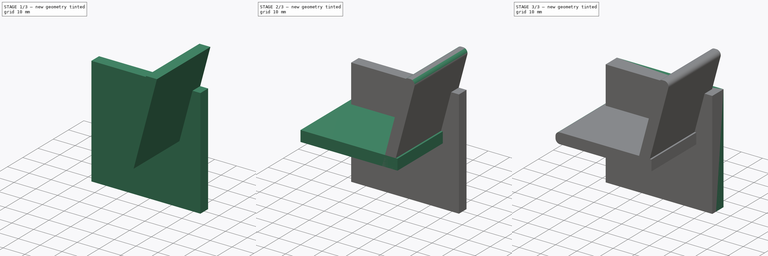
[diagram: build sequence overview — one tinted view per stage of 3, left to right]
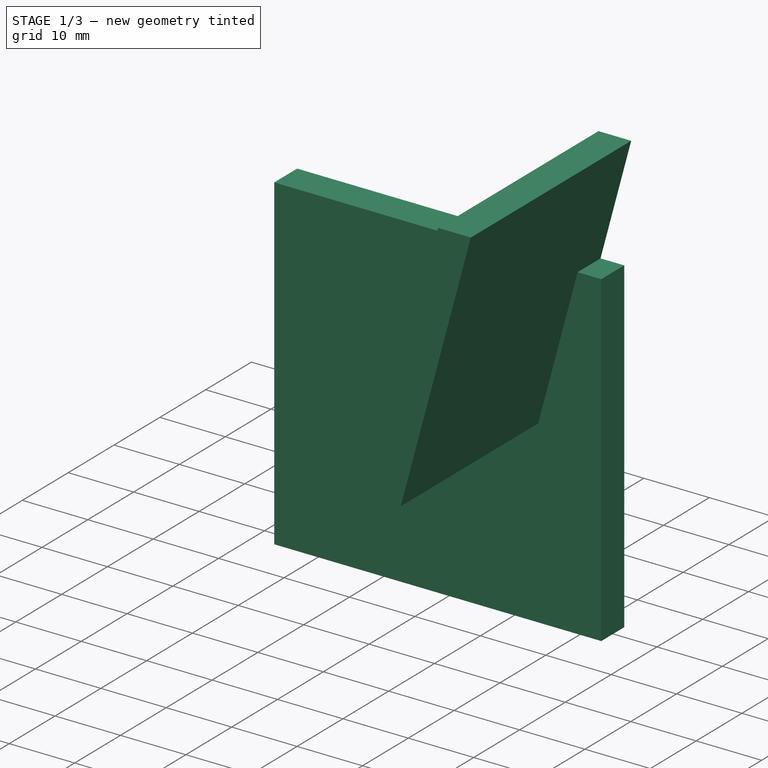
[diagram: stage 1 of 3 — iso view after this stage's code; geometry added in this stage tinted green]
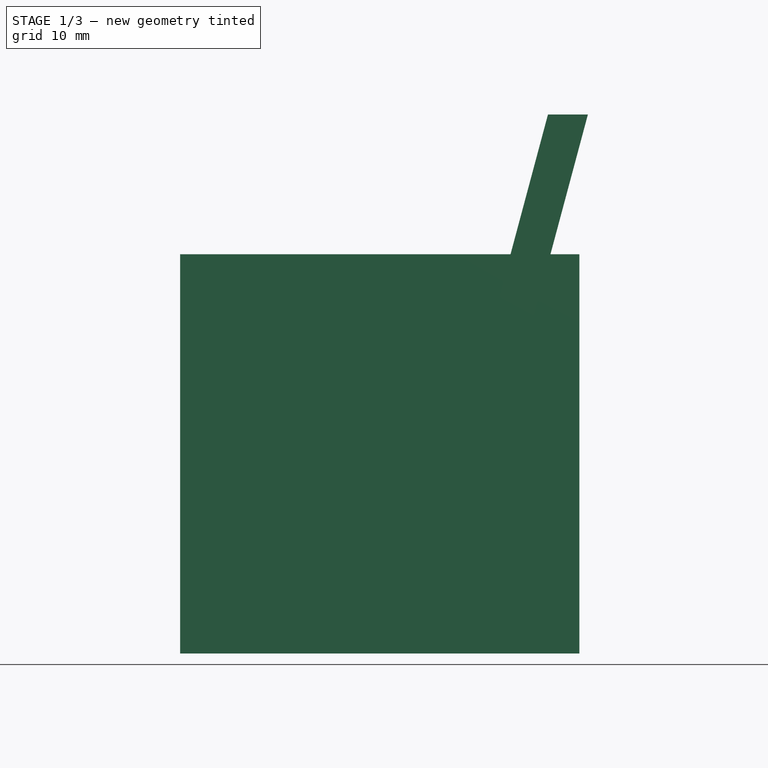
[diagram: stage 1 of 3 — front view after this stage's code; geometry added in this stage tinted green]
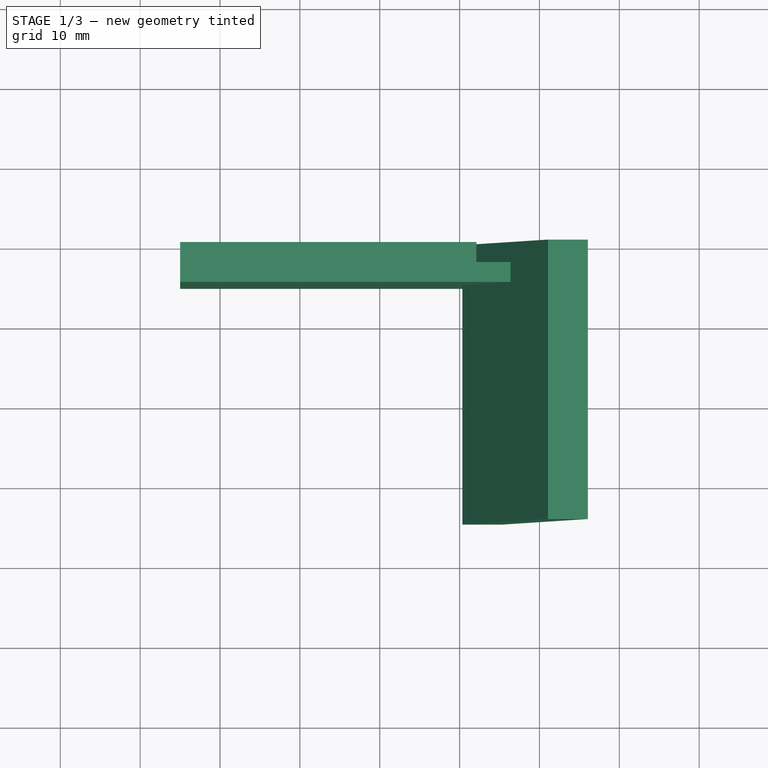
[diagram: stage 1 of 3 — top view after this stage's code; geometry added in this stage tinted green]
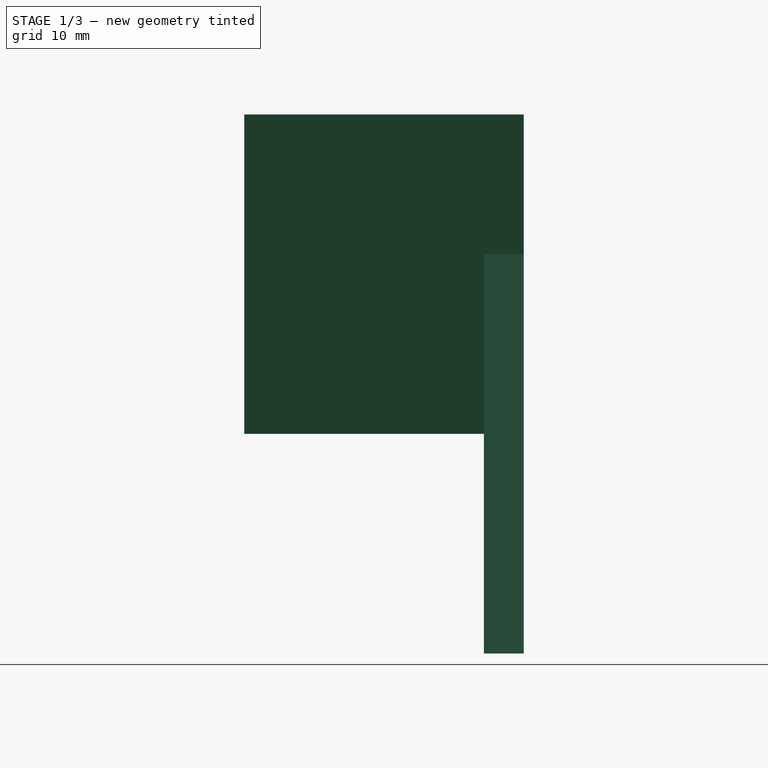
[diagram: stage 1 of 3 — right view after this stage's code; geometry added in this stage tinted green]
FCSTD DOCUMENT  (FreeCAD 1.0R39109 (Git))
Label: chair
License: All rights reserved
LicenseURL: https://en.wikipedia.org/wiki/All_rights_reserved
objects: Sketcher::SketchObject×6, PartDesign::Pad×4, PartDesign::Body×4, PartDesign::Pocket×2, PartDesign::Fillet×2, App::VarSet×1
note: 40 computed .brp shape members not serialized (recipe doc carries the construction recipe); baked Part::Feature solids carry a one-line shape summary decoded from their .brp

FEATURE [PartDesign::Body] Body001  label="seat"
  AllowCompound = false
  Group = -> [Sketch002,Pad001,Fillet]
  Origin = -> Origin001
  Tip = -> Fillet
FEATURE [Sketcher::SketchObject] Sketch003
  ArcFitTolerance = 1e-06
  AttachmentSupport = -> [XZ_Plane002]
  FullyConstrained = false
  MakeInternals = false
  MapMode = 5
  Placement = pos=(0,0,0) rot=(1,0,0;1.5708rad)
  expr: Constraints[10] = VarSet.seat_thickness / 2
  expr: Constraints[4] = VarSet.back_rest_thickness
  expr: Constraints[5] = 105
  expr: Constraints[9] = VarSet.back_rest_height
  sketch-geometry (4):
    g0: LineSegment StartX=21.0671 StartY=42.5 StartZ=0 EndX=10.3491 EndY=2.5 EndZ=0
    g1: LineSegment StartX=10.3491 StartY=2.5 StartZ=0 EndX=15.3491 EndY=2.5 EndZ=0
    g2: LineSegment StartX=15.3491 StartY=2.5 StartZ=0 EndX=26.0671 EndY=42.5 EndZ=0
    g3: LineSegment StartX=26.0671 StartY=42.5 StartZ=0 EndX=21.0671 EndY=42.5 EndZ=0
  constraints (11):
    c: Coincident(g0,g1)
    c: Coincident(g1,g2)
    c: Coincident(g2,g3)
    c: Coincident(g3,g0)
    c: Distance(g3,g3) = 5
    c: Angle(g2,g1) = 1.8326
    c: Horizontal(g1)
    c: Parallel(g2,g0)
    c: Horizontal(g3)
    c: DistanceY(g2,g2) = 40
    c: Distance(g1,g-1) = 2.5
FEATURE [PartDesign::Pad] Pad002
  Direction = (0,-1,2e-16)
  Length = 35
  Length2 = 10
  Placement = pos=(0,0,0) rot=(1,0,0;1.5708rad)
  Profile = -> Sketch003
  ReferenceAxis = -> Sketch003 [N_Axis]
  Refine = true
  Suppressed = false
  Type = 0
  expr: Length = VarSet.seat_width
FEATURE [PartDesign::Body] Body002  label="back_rest"
  AllowCompound = false
  Group = -> [Sketch003,Pad002,Fillet001]
  Origin = -> Origin002
  Tip = -> Fillet001
FEATURE [Sketcher::SketchObject] Sketch004
  ArcFitTolerance = 1e-06
  AttachmentSupport = -> [XZ_Plane]
  FullyConstrained = true
  MakeInternals = false
  MapMode = 5
  Placement = pos=(0,0,0) rot=(1,0,0;1.5708rad)
  expr: Constraints[10] = VarSet.leg_depth
  expr: Constraints[11] = VarSet.leg_height
  sketch-geometry (5):
    g0: LineSegment StartX=-25 StartY=-25 StartZ=0 EndX=25 EndY=-25 EndZ=0
    g1: LineSegment StartX=25 StartY=-25 StartZ=0 EndX=25 EndY=25 EndZ=0
    g2: LineSegment StartX=25 StartY=25 StartZ=0 EndX=-25 EndY=25 EndZ=0
    g3: LineSegment StartX=-25 StartY=25 StartZ=0 EndX=-25 EndY=-25 EndZ=0
    g4: GeomPoint [constr] X=0 Y=0 Z=0
  constraints (12):
    c: Coincident(g0,g1)
    c: Coincident(g1,g2)
    c: Coincident(g2,g3)
    c: Coincident(g3,g0)
    c: Horizontal(g0)
    c: Horizontal(g2)
    c: Vertical(g1)
    c: Vertical(g3)
    c: Symmetric(g2,g0,g4)
    c: Coincident(g4,g-1)
    c: DistanceX(g2,g2) = 50
    c: DistanceY(g3,g3) = 50
FEATURE [PartDesign::Pad] Pad003
  Direction = (0,-1,2e-16)
  Length = 5
  Length2 = 10
  Placement = pos=(0,0,0) rot=(1,0,0;1.5708rad)
  Profile = -> Sketch004
  ReferenceAxis = -> Sketch004 [N_Axis]
  Refine = true
  Suppressed = false
  Type = 0
  expr: Length = VarSet.leg_thickness
FEATURE [Sketcher::SketchObject] Sketch005
  ArcFitTolerance = 1e-06
  AttachmentSupport = -> [Pad003]
  ExternalGeometry = -> [Pad003]
  FullyConstrained = true
  MakeInternals = false
  MapMode = 5
  Placement = pos=(0,0,0) rot=(-1,0,0;1.5708rad)
  expr: Constraints[16] = VarSet.seat_depth
  expr: Constraints[17] = VarSet.back_rest_thickness
  expr: Constraints[21] = VarSet.seat_rest_start
  expr: Constraints[22] = VarSet.leg_seat_height
  expr: Constraints[23] = VarSet.seat_thickness
  sketch-geometry (8):
    g0: LineSegment StartX=-25 StartY=-12.5 StartZ=0 EndX=-25 EndY=-7.5 EndZ=0
    g1: LineSegment StartX=-25 StartY=-7.5 StartZ=0 EndX=20 EndY=-7.5 EndZ=0
    g2: LineSegment StartX=20 StartY=-7.5 StartZ=0 EndX=20 EndY=-12.5 EndZ=0
    g3: LineSegment StartX=20 StartY=-12.5 StartZ=0 EndX=13.75 EndY=-12.5 EndZ=0
    g4: LineSegment StartX=13.75 StartY=-12.5 StartZ=0 EndX=17.0994 EndY=-25 EndZ=0
    g5: LineSegment StartX=17.0994 StartY=-25 StartZ=0 EndX=12.0994 EndY=-25 EndZ=0
    g6: LineSegment StartX=12.0994 StartY=-25 StartZ=0 EndX=8.75 EndY=-12.5 EndZ=0
    g7: LineSegment StartX=8.75 StartY=-12.5 StartZ=0 EndX=-25 EndY=-12.5 EndZ=0
  constraints (24):
    c: PointOnObject(g0,g-5)
    c: PointOnObject(g0,g-5)
    c: Coincident(g0,g1)
    c: Horizontal(g1)
    c: Coincident(g1,g2)
    c: Vertical(g2)
    c: Coincident(g2,g3)
    c: Horizontal(g3)
    c: Coincident(g3,g4)
    c: PointOnObject(g4,g-3)
    c: Coincident(g4,g5)
    c: PointOnObject(g5,g-3)
    c: Coincident(g5,g6)
    c: Coincident(g6,g7)
    c: Coincident(g7,g0)
    c: Horizontal(g7)
    c: DistanceX(g1,g1) = 45
    c: Distance(g5,g5) = 5
    c: Angle(g7,g6) = 1.8326
    c: Equal(g2,g0)
    c: Parallel(g6,g4)
    c: DistanceX(g7,g7) = 33.75
    c: Distance(g1,g-6) = 32.5
    c: Distance(g0,g0) = 5
FEATURE [PartDesign::Pocket] Pocket001
  BaseFeature = -> Pad003
  Direction = (0,-1,-2e-16)
  Length = 2.5
  Length2 = 5
  Placement = pos=(0,0,0) rot=(1,0,0;1.5708rad)
  Profile = -> Sketch005
  ReferenceAxis = -> Sketch005 [N_Axis]
  Refine = true
  Suppressed = false
  Type = 0
  expr: Length = VarSet.leg_clamp_depth
FEATURE [PartDesign::Body] Body003  label="left_leg"
  AllowCompound = false
  Group = -> [Sketch004,Pad003,Sketch005,Pocket001]
  Origin = -> Origin003
  Tip = -> Pocket001
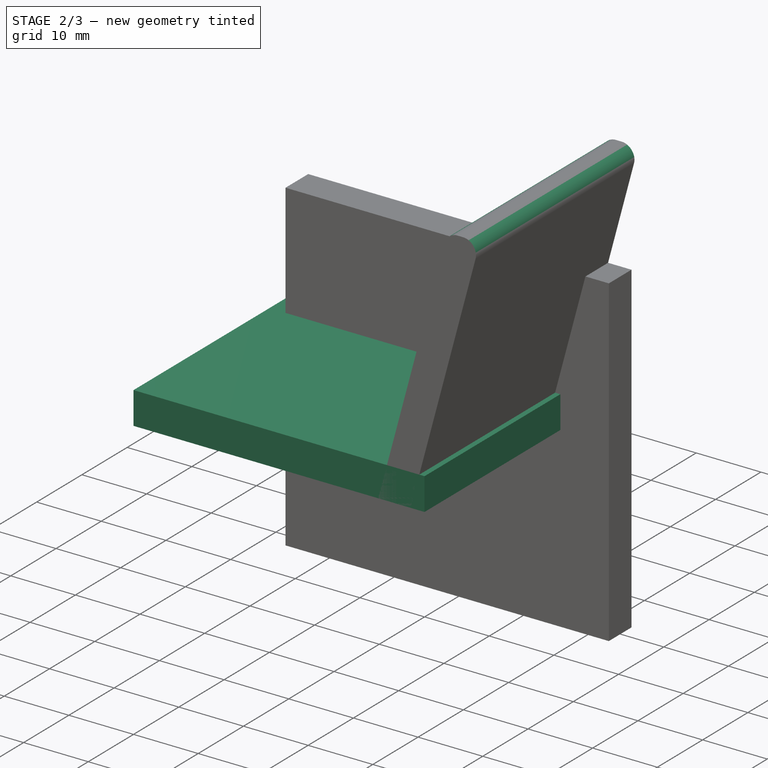
[diagram: stage 2 of 3 — iso view after this stage's code; geometry added in this stage tinted green]
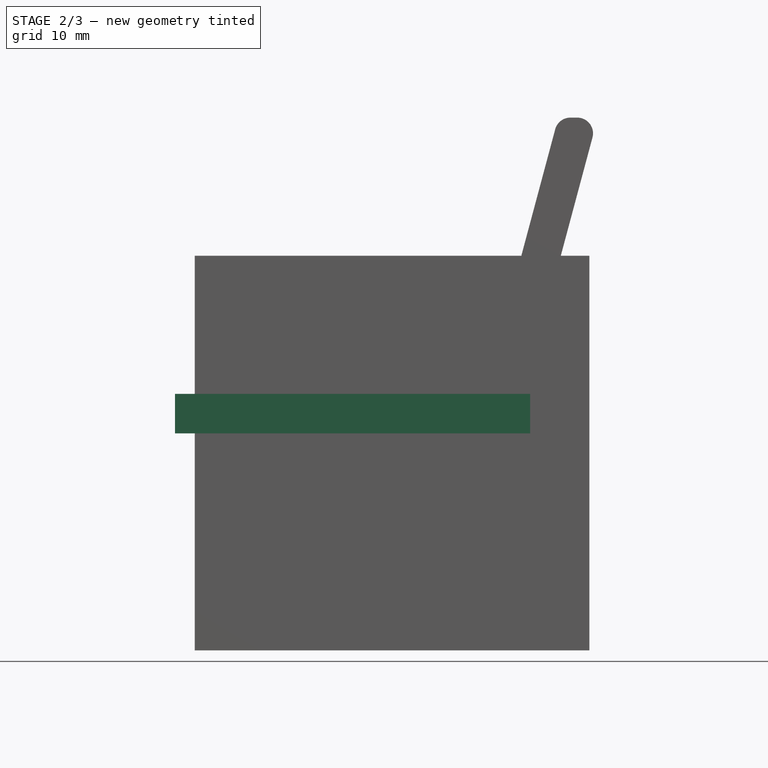
[diagram: stage 2 of 3 — front view after this stage's code; geometry added in this stage tinted green]
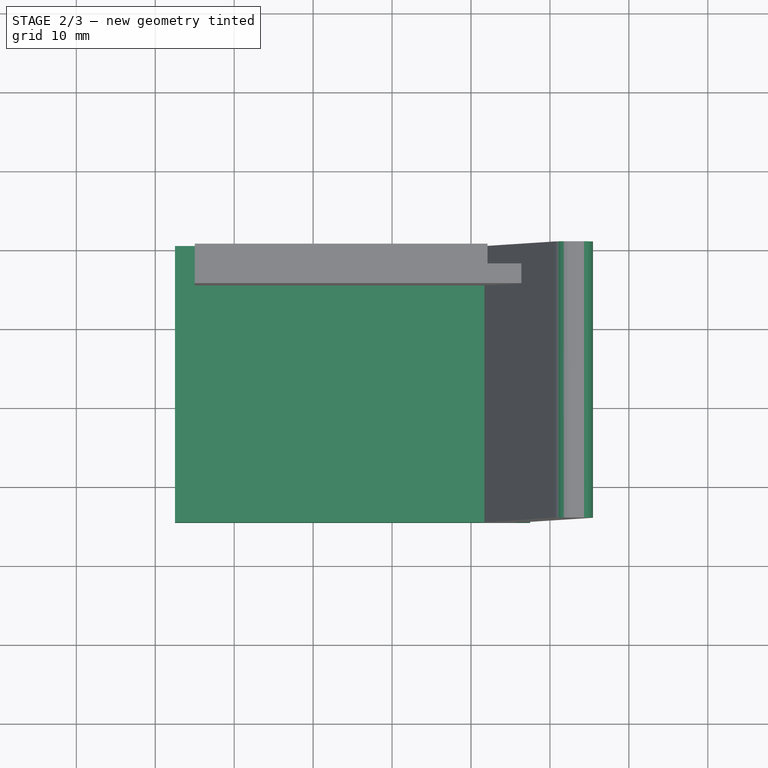
[diagram: stage 2 of 3 — top view after this stage's code; geometry added in this stage tinted green]
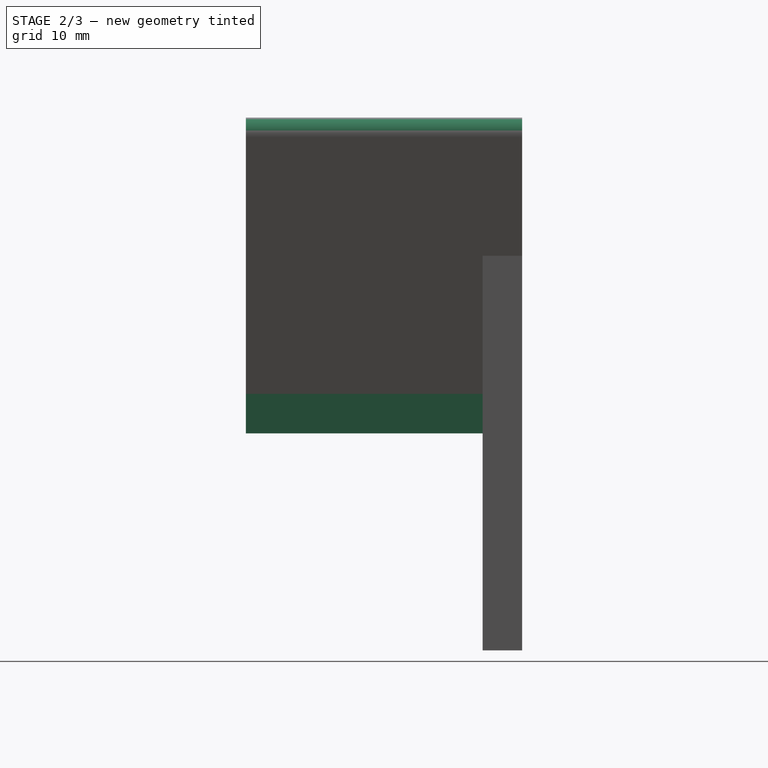
[diagram: stage 2 of 3 — right view after this stage's code; geometry added in this stage tinted green]
FEATURE [PartDesign::Body] Body  label="right_leg"
  AllowCompound = false
  Group = -> [Sketch,Pad,Sketch001,Pocket]
  Origin = -> Origin
  Tip = -> Pocket
FEATURE [Sketcher::SketchObject] Sketch002
  ArcFitTolerance = 1e-06
  AttachmentSupport = -> [XZ_Plane001]
  FullyConstrained = true
  MakeInternals = false
  MapMode = 5
  Placement = pos=(0,0,0) rot=(1,0,0;1.5708rad)
  expr: Constraints[11] = VarSet.leg_height / 2 - (VarSet.leg_height - VarSet.leg_seat_height + VarSet.seat_thickness)
  expr: Constraints[7] = VarSet.seat_depth
  expr: Constraints[8] = VarSet.seat_thickness
  expr: Constraints[9] = VarSet.seat_depth / 2 + VarSet.leg_depth - VarSet.seat_depth
  sketch-geometry (4):
    g0: LineSegment StartX=17.5 StartY=2.5 StartZ=0 EndX=17.5 EndY=7.5 EndZ=0
    g1: LineSegment StartX=17.5 StartY=7.5 StartZ=0 EndX=-27.5 EndY=7.5 EndZ=0
    g2: LineSegment StartX=-27.5 StartY=7.5 StartZ=0 EndX=-27.5 EndY=2.5 EndZ=0
    g3: LineSegment StartX=-27.5 StartY=2.5 StartZ=0 EndX=17.5 EndY=2.5 EndZ=0
  constraints (12):
    c: Coincident(g0,g1)
    c: Coincident(g1,g2)
    c: Coincident(g2,g3)
    c: Coincident(g3,g0)
    c: Vertical(g0)
    c: Horizontal(g1)
    c: Horizontal(g3)
    c: DistanceX(g1,g1) = 45
    c: Distance(g0,g0) = 5
    c: Distance(g2,g-2) = 27.5
    c: Equal(g2,g0)
    c: Distance(g2,g-1) = 2.5
FEATURE [PartDesign::Pad] Pad001
  Direction = (0,-1,2e-16)
  Length = 35
  Length2 = 10
  Placement = pos=(0,0,0) rot=(1,0,0;1.5708rad)
  Profile = -> Sketch002
  ReferenceAxis = -> Sketch002 [N_Axis]
  Refine = true
  Suppressed = false
  Type = 0
  expr: Length = VarSet.seat_width
FEATURE [PartDesign::Fillet] Fillet001
  Base = -> Pad002 [Edge1,Edge8]
  BaseFeature = -> Pad002
  Placement = pos=(0,0,0) rot=(1,0,0;1.5708rad)
  Radius = 2
  Refine = true
  SupportTransform = false
  Suppressed = false
  UseAllEdges = false
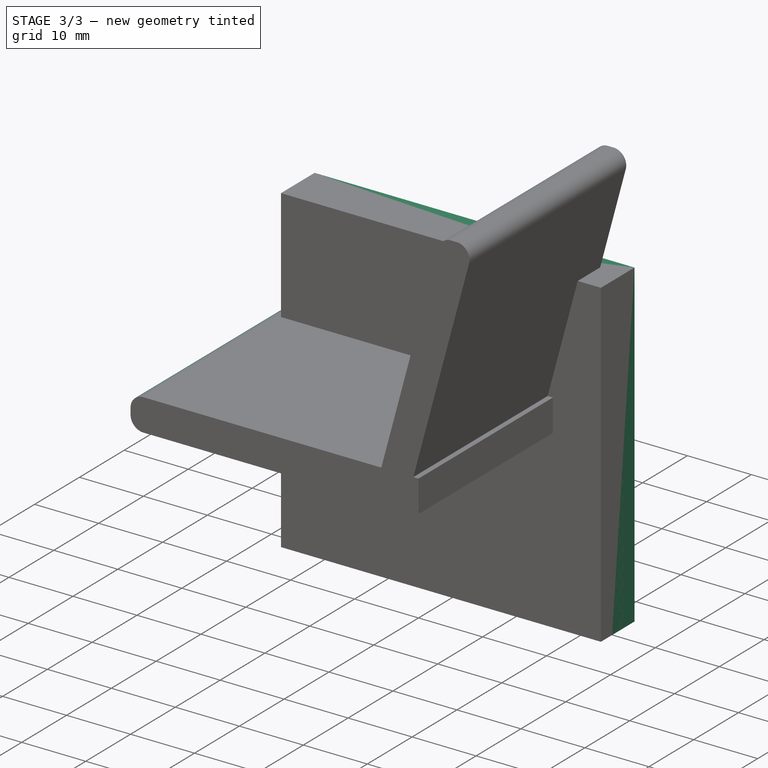
[diagram: stage 3 of 3 — iso view after this stage's code; geometry added in this stage tinted green]
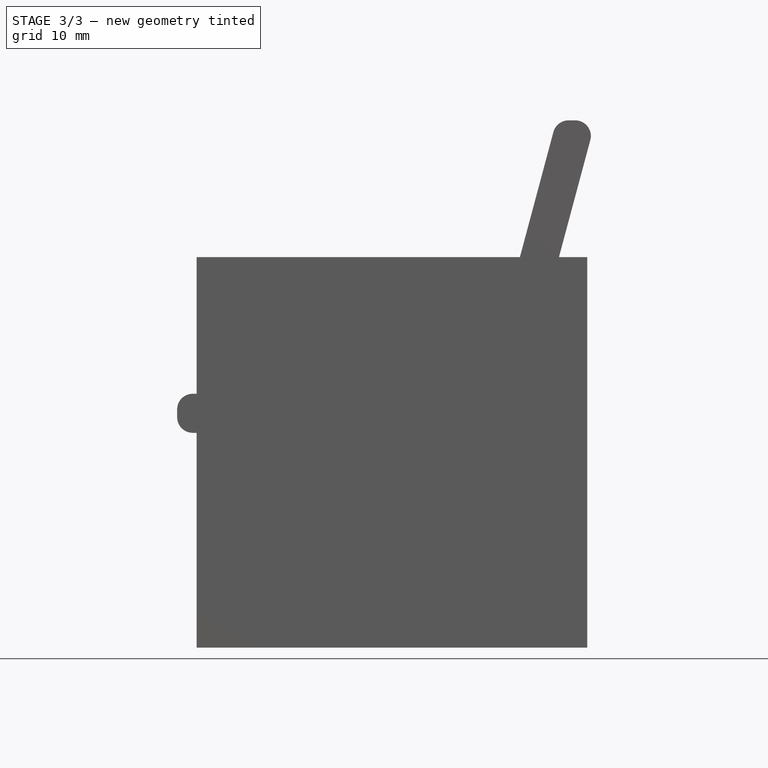
[diagram: stage 3 of 3 — front view after this stage's code; geometry added in this stage tinted green]
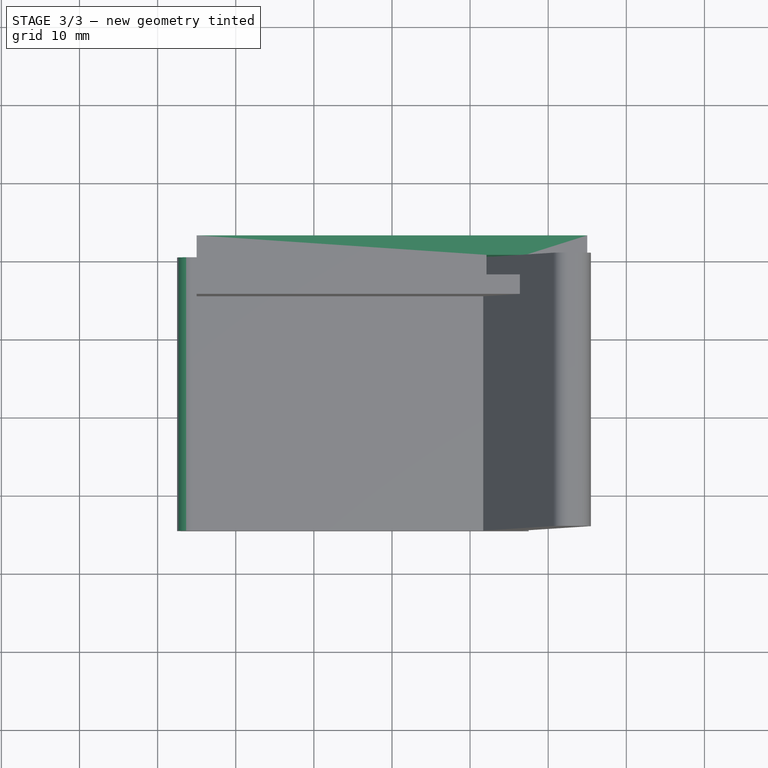
[diagram: stage 3 of 3 — top view after this stage's code; geometry added in this stage tinted green]
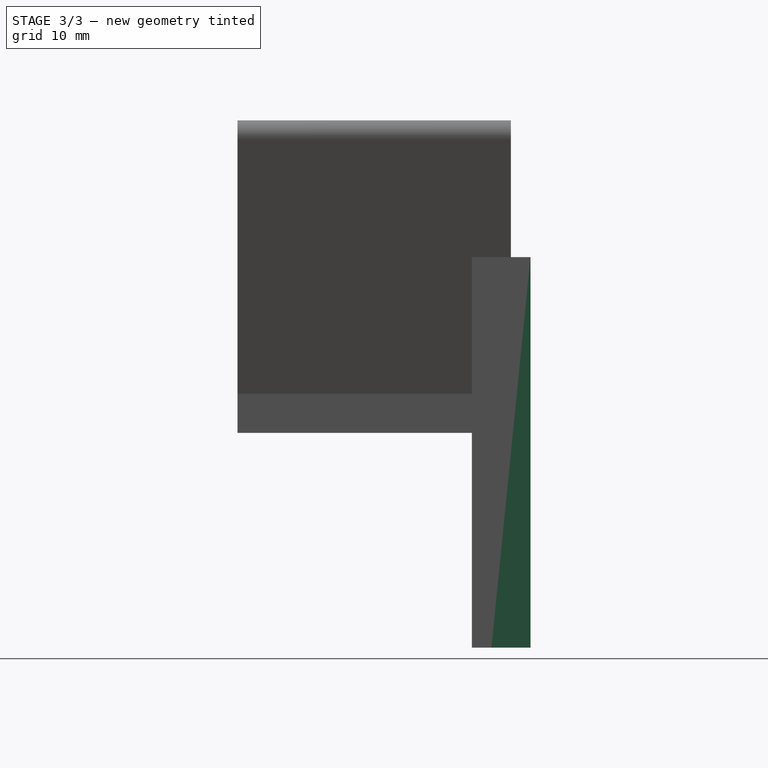
[diagram: stage 3 of 3 — right view after this stage's code; geometry added in this stage tinted green]
FEATURE [App::VarSet] VarSet
  back_rest_height = 40
  back_rest_thickness = 5
  leg_clamp_depth = 2.5
  leg_depth = 50
  leg_height = 50
  leg_seat_height = 32.5
  leg_thickness = 5
  seat_depth = 45
  seat_rest_start = 33.75
  seat_thickness = 5
  seat_width = 35
  expr: leg_clamp_depth = leg_thickness * 0.5
  expr: leg_seat_height = leg_height * 0.65
  expr: seat_depth = leg_depth - leg_depth * 0.1
  expr: seat_rest_start = seat_depth * 0.75
FEATURE [Sketcher::SketchObject] Sketch
  ArcFitTolerance = 1e-06
  AttachmentSupport = -> [XZ_Plane]
  FullyConstrained = true
  MakeInternals = false
  MapMode = 5
  Placement = pos=(0,0,0) rot=(1,0,0;1.5708rad)
  expr: Constraints[10] = VarSet.leg_depth
  expr: Constraints[11] = VarSet.leg_height
  sketch-geometry (5):
    g0: LineSegment StartX=-25 StartY=-25 StartZ=0 EndX=25 EndY=-25 EndZ=0
    g1: LineSegment StartX=25 StartY=-25 StartZ=0 EndX=25 EndY=25 EndZ=0
    g2: LineSegment StartX=25 StartY=25 StartZ=0 EndX=-25 EndY=25 EndZ=0
    g3: LineSegment StartX=-25 StartY=25 StartZ=0 EndX=-25 EndY=-25 EndZ=0
    g4: GeomPoint [constr] X=0 Y=1e-16 Z=0
  constraints (12):
    c: Coincident(g0,g1)
    c: Coincident(g1,g2)
    c: Coincident(g2,g3)
    c: Coincident(g3,g0)
    c: Horizontal(g0)
    c: Horizontal(g2)
    c: Vertical(g1)
    c: Vertical(g3)
    c: Symmetric(g2,g0,g4)
    c: Coincident(g4,g-1)
    c: DistanceX(g2,g2) = 50
    c: DistanceY(g3,g3) = 50
FEATURE [PartDesign::Pad] Pad  label="leg"
  Direction = (0,-1,2e-16)
  Length = 5
  Length2 = 10
  Midplane = true
  Placement = pos=(0,0,0) rot=(1,0,0;1.5708rad)
  Profile = -> Sketch
  ReferenceAxis = -> Sketch [N_Axis]
  Refine = true
  Suppressed = false
  Type = 0
  expr: Length = VarSet.leg_thickness
FEATURE [Sketcher::SketchObject] Sketch001
  ArcFitTolerance = 1e-06
  AttachmentSupport = -> [Pad]
  ExternalGeometry = -> [Pad]
  FullyConstrained = true
  MakeInternals = false
  MapMode = 5
  Placement = pos=(0,-2.5,0) rot=(1,0,0;1.5708rad)
  expr: Constraints[16] = VarSet.seat_rest_start
  expr: Constraints[22] = VarSet.seat_thickness
  expr: Constraints[23] = VarSet.leg_seat_height
  expr: Constraints[8] = VarSet.back_rest_thickness
  expr: Constraints[9] = VarSet.seat_depth
  sketch-geometry (8):
    g0: LineSegment StartX=-25 StartY=7.5 StartZ=0 EndX=-25 EndY=12.5 EndZ=0
    g1: LineSegment StartX=-25 StartY=7.5 StartZ=0 EndX=20 EndY=7.5 EndZ=0
    g2: LineSegment StartX=20 StartY=12.5 StartZ=0 EndX=20 EndY=7.5 EndZ=0
    g3: LineSegment StartX=20 StartY=12.5 StartZ=0 EndX=13.75 EndY=12.5 EndZ=0
    g4: LineSegment StartX=13.75 StartY=12.5 StartZ=0 EndX=17.0994 EndY=25 EndZ=0
    g5: LineSegment StartX=17.0994 StartY=25 StartZ=0 EndX=12.0994 EndY=25 EndZ=0
    g6: LineSegment StartX=12.0994 StartY=25 StartZ=0 EndX=8.75 EndY=12.5 EndZ=0
    g7: LineSegment StartX=8.75 StartY=12.5 StartZ=0 EndX=-25 EndY=12.5 EndZ=0
  constraints (24):
    c: Horizontal(g1)
    c: Horizontal(g3)
    c: Coincident(g3,g4)
    c: PointOnObject(g4,g-3)
    c: Coincident(g4,g5)
    c: PointOnObject(g5,g-3)
    c: Coincident(g5,g6)
    c: Coincident(g6,g7)
    c: Distance(g5,g5) = 5
    c: DistanceX(g1,g1) = 45
    c: Equal(g2,g0)
    c: Horizontal(g7)
    c: PointOnObject(g0,g-6)
    c: Vertical(g2)
    c: Parallel(g6,g4)
    c: Angle(g6,g7) = 1.8326
    c: DistanceX(g7,g7) = 33.75
    c: Vertical(g0)
    c: Coincident(g2,g1)
    c: Coincident(g2,g3)
    c: Coincident(g7,g0)
    c: Coincident(g0,g1)
    c: Distance(g0,g0) = 5
    c: Distance(g0,g-5) = 32.5
FEATURE [PartDesign::Pocket] Pocket  label="seat_n_rest_pocket"
  BaseFeature = -> Pad
  Direction = (0,1,-2e-16)
  Length = 2.5
  Length2 = 5
  Placement = pos=(0,0,0) rot=(1,0,0;1.5708rad)
  Profile = -> Sketch001
  ReferenceAxis = -> Sketch001 [N_Axis]
  Refine = true
  Suppressed = false
  Type = 0
  expr: Length = VarSet.leg_clamp_depth
FEATURE [PartDesign::Fillet] Fillet
  Base = -> Pad001 [Edge5,Edge8]
  BaseFeature = -> Pad001
  Placement = pos=(0,0,0) rot=(1,0,0;1.5708rad)
  Radius = 2
  Refine = true
  SupportTransform = false
  Suppressed = false
  UseAllEdges = false
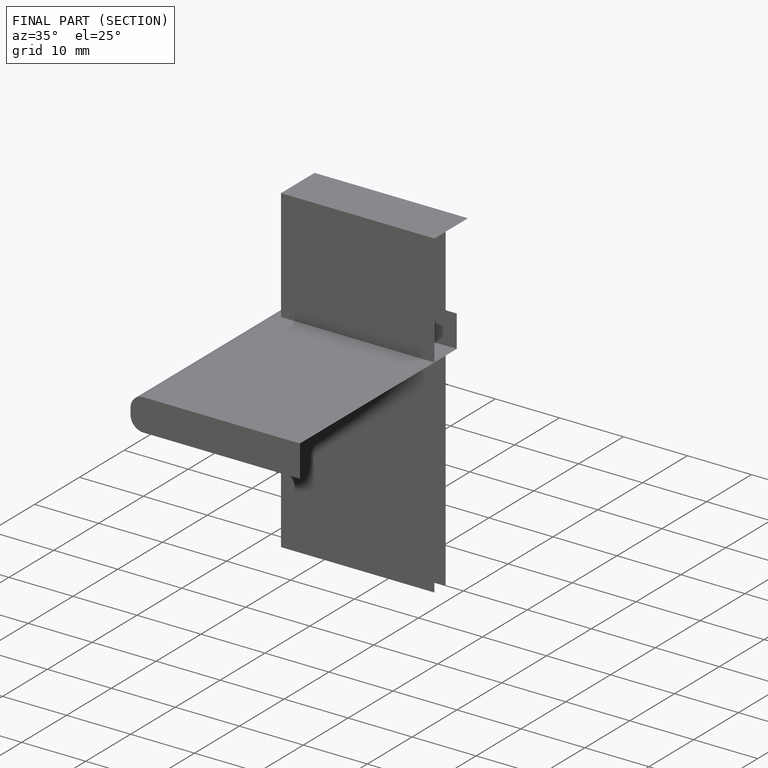
[diagram: finished part — half-section view (interior)]
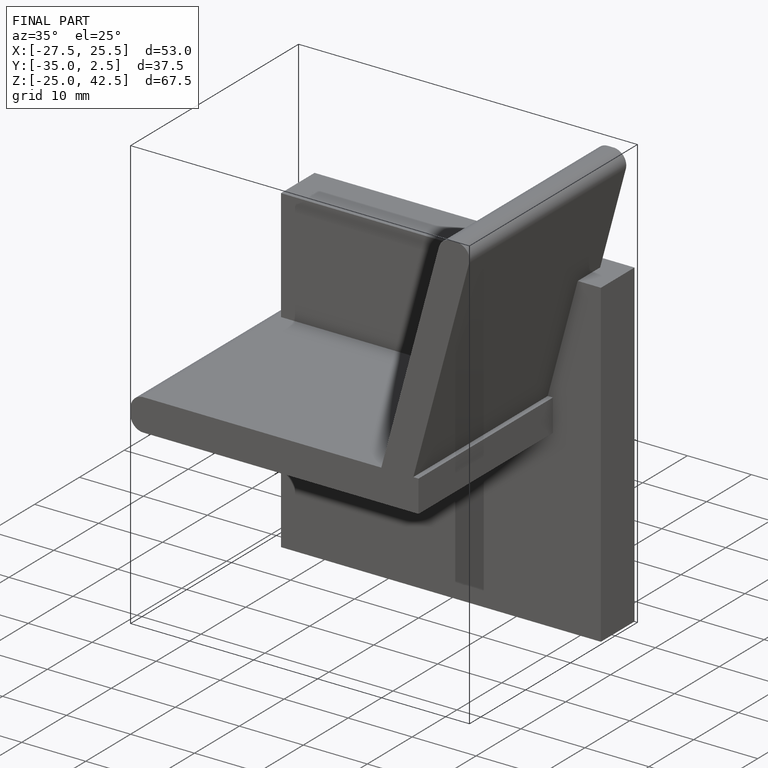
[diagram: finished part — iso view with bounding-box wireframe]
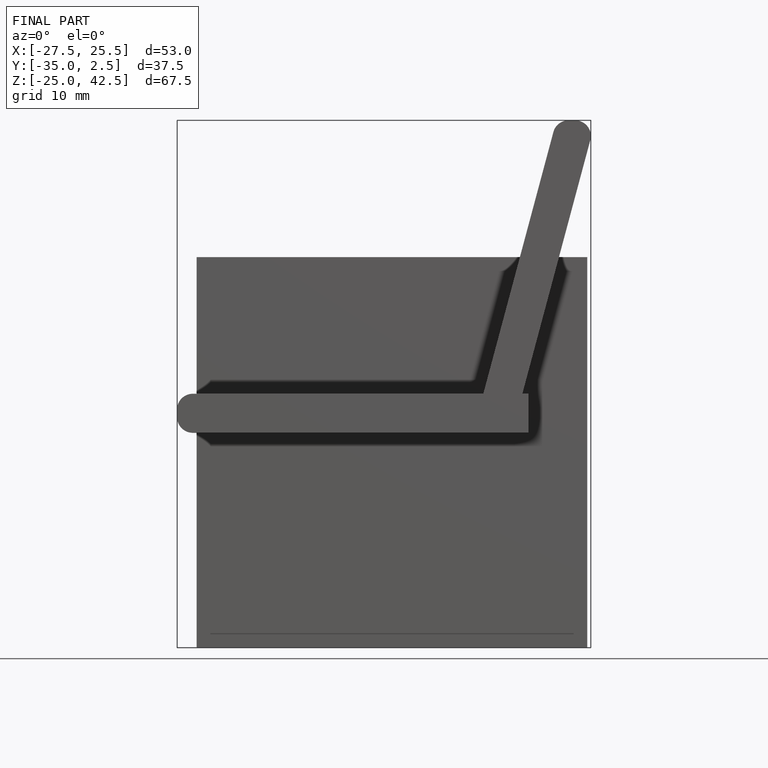
[diagram: finished part — front view with bounding-box wireframe]
